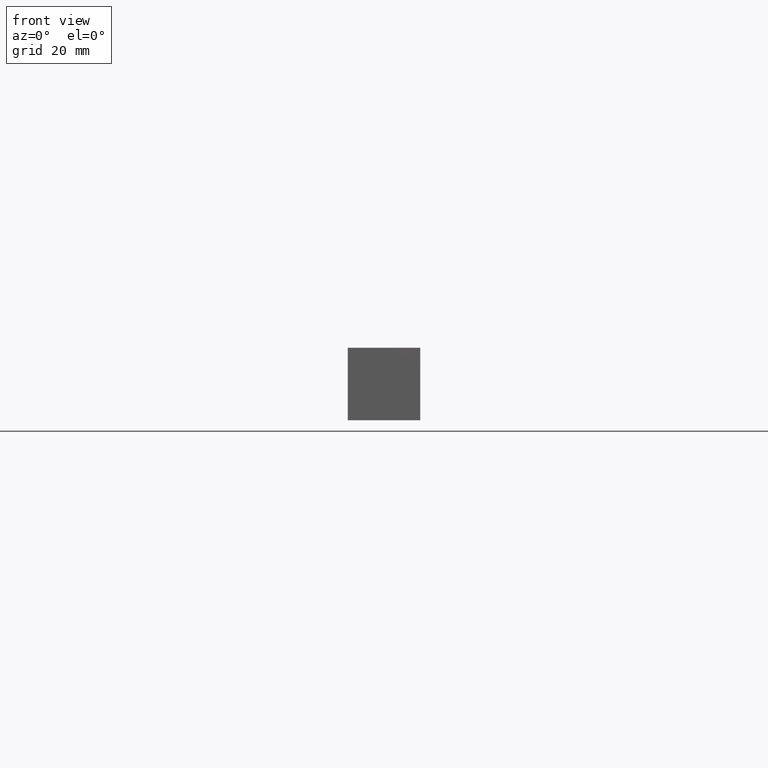
[diagram: clean part render]
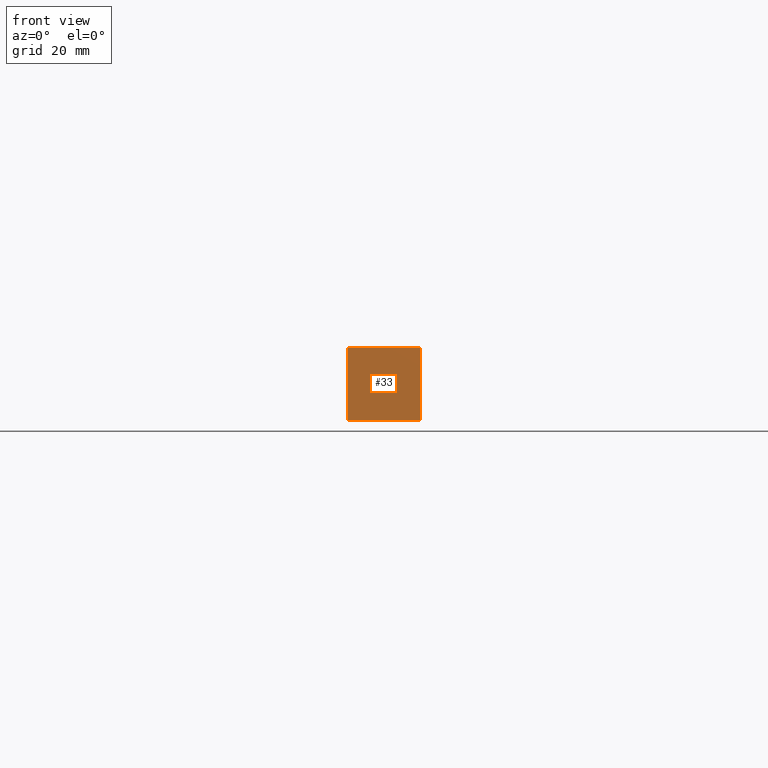
[diagram: same view with one face highlighted and labeled with its STEP entity id]
A machine part, front view. The second image highlights one B-rep face of the part: STEP entity #33.
In plain terms, the highlighted planar face has unit normal (0, 1, 0).
Its self-contained STEP definition (entity closure, byte-faithful):
#16 = EDGE_LOOP ( 'NONE', ( #113, #71, #28, #63 ) ) ;
#17 = EDGE_CURVE ( 'NONE', #152, #140, #156, .T. ) ;
#21 = DIRECTION ( 'NONE',  ( 0.0000000000000000000, 0.0000000000000000000, -1.000000000000000000 ) ) ;
#25 = LINE ( 'NONE', #109, #115 ) ;
#28 = ORIENTED_EDGE ( 'NONE', *, *, #150, .F. ) ;
#33 = ADVANCED_FACE ( 'NONE', ( #203 ), #197, .F. ) ;
#41 = CARTESIAN_POINT ( 'NONE',  ( 0.0000000000000000000, 0.0000000000000000000, 20.00000000000000000 ) ) ;
#50 = VECTOR ( 'NONE', #21, 1000.000000000000000 ) ;
#53 = EDGE_CURVE ( 'NONE', #183, #152, #164, .T. ) ;
#61 = CARTESIAN_POINT ( 'NONE',  ( 20.00000000000000000, 0.0000000000000000000, 20.00000000000000000 ) ) ;
#63 = ORIENTED_EDGE ( 'NONE', *, *, #131, .F. ) ;
#64 = CARTESIAN_POINT ( 'NONE',  ( 20.00000000000000000, 0.0000000000000000000, 0.0000000000000000000 ) ) ;
#71 = ORIENTED_EDGE ( 'NONE', *, *, #53, .F. ) ;
#79 = CARTESIAN_POINT ( 'NONE',  ( 0.0000000000000000000, 0.0000000000000000000, 0.0000000000000000000 ) ) ;
#93 = LINE ( 'NONE', #61, #50 ) ;
#109 = CARTESIAN_POINT ( 'NONE',  ( 20.00000000000000000, 0.0000000000000000000, 0.0000000000000000000 ) ) ;
#113 = ORIENTED_EDGE ( 'NONE', *, *, #17, .F. ) ;
#115 = VECTOR ( 'NONE', #137, 1000.000000000000000 ) ;
#120 = DIRECTION ( 'NONE',  ( -0.0000000000000000000, 1.000000000000000000, 0.0000000000000000000 ) ) ;
#131 = EDGE_CURVE ( 'NONE', #140, #221, #93, .T. ) ;
#137 = DIRECTION ( 'NONE',  ( -1.000000000000000000, 0.0000000000000000000, 0.0000000000000000000 ) ) ;
#140 = VERTEX_POINT ( 'NONE', #211 ) ;
#145 = VECTOR ( 'NONE', #236, 1000.000000000000000 ) ;
#150 = EDGE_CURVE ( 'NONE', #221, #183, #25, .T. ) ;
#152 = VERTEX_POINT ( 'NONE', #41 ) ;
#154 = VECTOR ( 'NONE', #204, 1000.000000000000000 ) ;
#156 = LINE ( 'NONE', #176, #145 ) ;
#163 = CARTESIAN_POINT ( 'NONE',  ( 0.0000000000000000000, 0.0000000000000000000, 0.0000000000000000000 ) ) ;
#164 = LINE ( 'NONE', #79, #154 ) ;
#176 = CARTESIAN_POINT ( 'NONE',  ( 0.0000000000000000000, 0.0000000000000000000, 20.00000000000000000 ) ) ;
#178 = CARTESIAN_POINT ( 'NONE',  ( 0.0000000000000000000, 0.0000000000000000000, 0.0000000000000000000 ) ) ;
#183 = VERTEX_POINT ( 'NONE', #163 ) ;
#197 = PLANE ( 'NONE',  #220 ) ;
#203 = FACE_OUTER_BOUND ( 'NONE', #16, .T. ) ;
#204 = DIRECTION ( 'NONE',  ( 0.0000000000000000000, 0.0000000000000000000, 1.000000000000000000 ) ) ;
#207 = DIRECTION ( 'NONE',  ( 1.000000000000000000, 0.0000000000000000000, 0.0000000000000000000 ) ) ;
#211 = CARTESIAN_POINT ( 'NONE',  ( 20.00000000000000000, 0.0000000000000000000, 20.00000000000000000 ) ) ;
#220 = AXIS2_PLACEMENT_3D ( 'NONE', #178, #120, #207 ) ;
#221 = VERTEX_POINT ( 'NONE', #64 ) ;
#236 = DIRECTION ( 'NONE',  ( 1.000000000000000000, 0.0000000000000000000, 0.0000000000000000000 ) ) ;